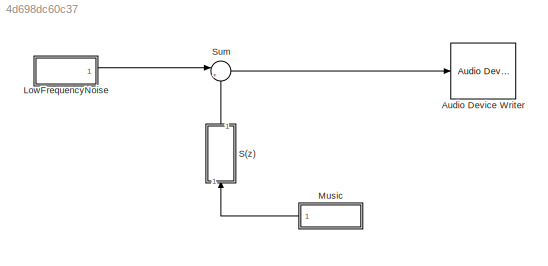
MODEL slx_4d698dc60c37
KIND model
CONFIG AbsTol = auto
CONFIG FixedStep = auto
CONFIG MaxStep = auto
CONFIG MinStep = auto
CONFIG RelTol = 1e-3
CONFIG SampleTimeConstraint = Unconstrained
CONFIG Solver = VariableStepAuto
CONFIG SolverMode = Auto
CONFIG SolverName = VariableStepAuto
CONFIG StartTime = 0.0
CONFIG StopTime = inf
BLOCK [Reference] Audio Device Writer  REF=dspsnks4/Audio Device
Writer
  Ports = [1]
  SourceBlock = dspsnks4/Audio Device\nWriter
  SourceType = Audio Device Writer
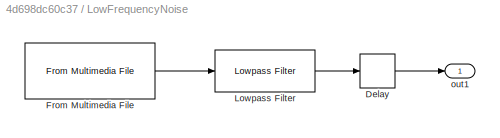
BLOCK [SubSystem] LowFrequencyNoise
  Ports = [0, 1]
  RequestExecContextInheritance = off
  Variant = off
BLOCK [Delay] LowFrequencyNoise/Delay
  DelayLength = 1
  InitialCondition = 0
  InputPortMap = u0
  Ports = [1, 1]
BLOCK [Reference] LowFrequencyNoise/From Multimedia File  REF=dspvision/From Multimedia File
  Ports = [0, 1]
  SourceBlock = dspvision/From Multimedia File
  SourceType = From Multimedia File
BLOCK [Reference] LowFrequencyNoise/Lowpass Filter  REF=dspfdesign/Lowpass Filter
  Ports = [1, 1]
  SourceBlock = dspfdesign/Lowpass Filter
  SourceType = dsp.LowpassFilter
BLOCK [Outport] LowFrequencyNoise/out1 
  IconDisplay = Port number
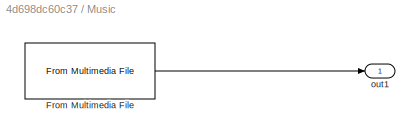
BLOCK [SubSystem] Music
  Ports = [0, 1]
  RequestExecContextInheritance = off
  Variant = off
BLOCK [Reference] Music/From Multimedia File  REF=dspvision/From Multimedia File
  Ports = [0, 1]
  SourceBlock = dspvision/From Multimedia File
  SourceType = From Multimedia File
BLOCK [Outport] Music/out1 
  IconDisplay = Port number
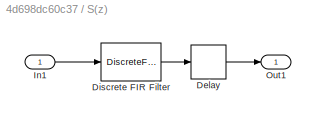
BLOCK [SubSystem] S(z)
  Ports = [1, 1]
  RequestExecContextInheritance = off
  Variant = off
BLOCK [Delay] S(z)/Delay
  DelayLength = 1
  InitialCondition = 0
  InputPortMap = u0
  Ports = [1, 1]
BLOCK [DiscreteFir] S(z)/Discrete FIR Filter
  Coefficients = [0.7 0.5 0.5]
  InputPortMap = u0
  OutputPortMap = o0
  Ports = [1, 1]
BLOCK [Inport] S(z)/In1
  IconDisplay = Port number
BLOCK [Outport] S(z)/Out1
  IconDisplay = Port number
BLOCK [Sum] Sum
  IconShape = round
  InputSameDT = off
  Inputs = |++
  OutDataTypeStr = Inherit: Inherit via internal rule
  Ports = [2, 1]
  SaturateOnIntegerOverflow = off
LINE LowFrequencyNoise/Delay:1 -> LowFrequencyNoise/out1 :1
LINE LowFrequencyNoise/From Multimedia File:1 -> LowFrequencyNoise/Lowpass Filter:1
LINE LowFrequencyNoise/Lowpass Filter:1 -> LowFrequencyNoise/Delay:1
LINE LowFrequencyNoise:1 -> Sum:1
LINE Music/From Multimedia File:1 -> Music/out1 :1
LINE Music:1 -> S(z):1
LINE S(z)/Delay:1 -> S(z)/Out1:1
LINE S(z)/Discrete FIR Filter:1 -> S(z)/Delay:1
LINE S(z)/In1:1 -> S(z)/Discrete FIR Filter:1
LINE S(z):1 -> Sum:2
LINE Sum:1 -> Audio Device Writer:1
